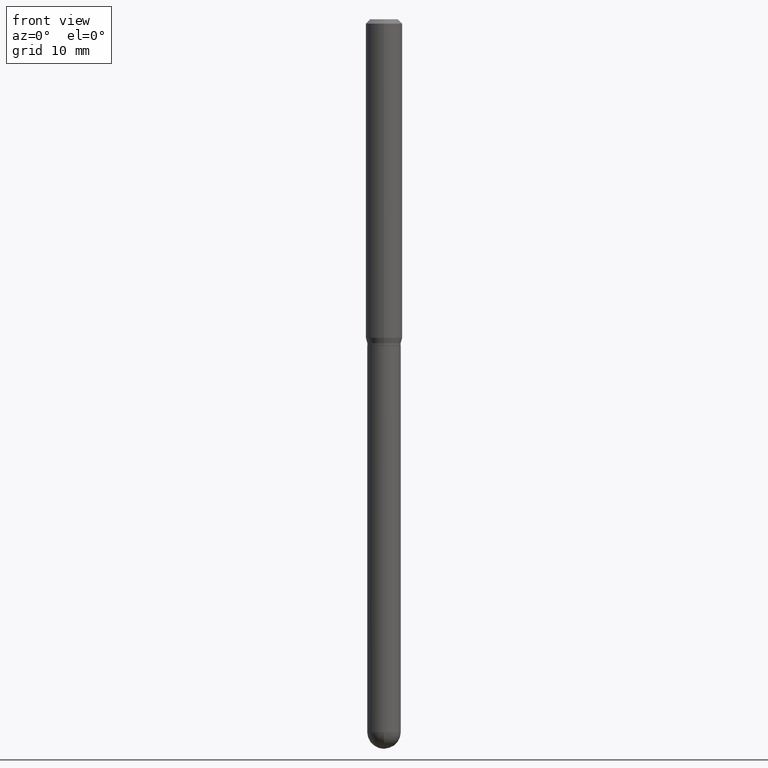
[diagram: clean part render]
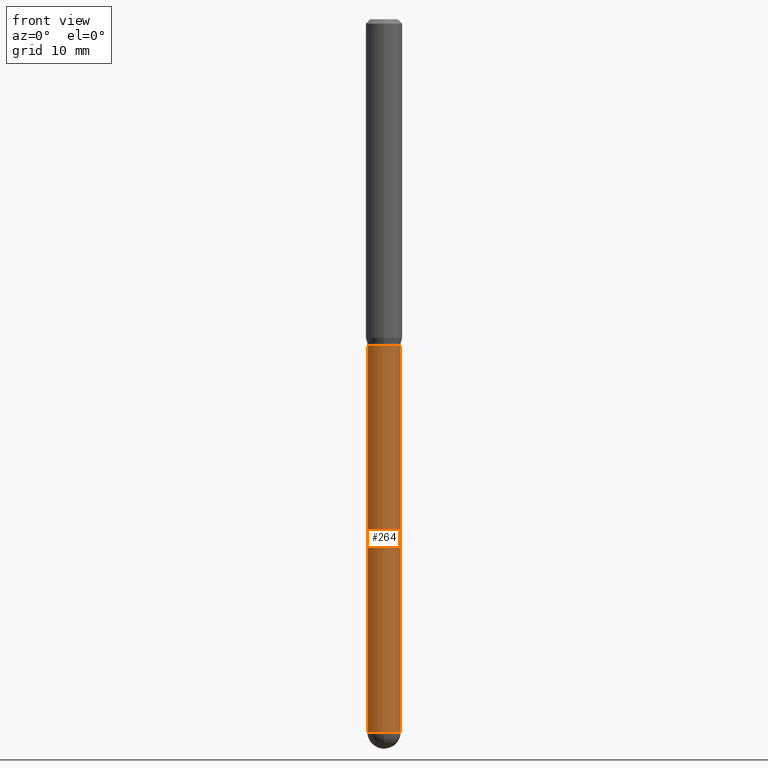
[diagram: same view with one face highlighted and labeled with its STEP entity id]
A machine part, front view. The second image highlights one B-rep face of the part: STEP entity #264.
In plain terms, the highlighted cylindrical surface (edge-blend (fillet) strip) has radius 1.4605 mm, axis along (-0, 0, 1).
Its self-contained STEP definition (entity closure, byte-faithful):
#20 = CARTESIAN_POINT ( 'NONE',  ( -0.05750000000000000250, -5.810639061752296196E-15, -1.120000000000000329 ) ) ;
#32 = DIRECTION ( 'NONE',  ( -2.445468806185136597E-29, 3.491481338843145583E-15, 1.000000000000000000 ) ) ;
#34 = EDGE_CURVE ( 'NONE', #333, #499, #417, .T. ) ;
#37 = DIRECTION ( 'NONE',  ( -2.445468806185136877E-29, 3.491481338843145188E-15, 1.000000000000000000 ) ) ;
#38 = CARTESIAN_POINT ( 'NONE',  ( 2.738925062927354020E-29, -3.910459099504324188E-15, -1.120000000000000329 ) ) ;
#42 = CARTESIAN_POINT ( 'NONE',  ( 0.05750000000000000250, -4.311979453471284209E-15, -1.120000000000000329 ) ) ;
#52 = ORIENTED_EDGE ( 'NONE', *, *, #34, .T. ) ;
#57 = ORIENTED_EDGE ( 'NONE', *, *, #395, .F. ) ;
#58 = ORIENTED_EDGE ( 'NONE', *, *, #88, .T. ) ;
#81 = AXIS2_PLACEMENT_3D ( 'NONE', #107, #282, #141 ) ;
#85 = VERTEX_POINT ( 'NONE', #20 ) ;
#88 = EDGE_CURVE ( 'NONE', #437, #252, #151, .T. ) ;
#107 = CARTESIAN_POINT ( 'NONE',  ( 5.973057559107196227E-29, -8.527943170124383355E-15, -2.442499999999999893 ) ) ;
#124 = DIRECTION ( 'NONE',  ( 1.000000000000000000, -6.982962677686265922E-15, 4.876176775795935232E-29 ) ) ;
#141 = DIRECTION ( 'NONE',  ( 1.000000000000000000, -6.982962677686273810E-15, 0.000000000000000000 ) ) ;
#149 = DIRECTION ( 'NONE',  ( -2.445468806185136877E-29, 3.491481338843145188E-15, 1.000000000000000000 ) ) ;
#151 = LINE ( 'NONE', #323, #194 ) ;
#158 = CIRCLE ( 'NONE', #164, 0.05750000000000000250 ) ;
#160 = CARTESIAN_POINT ( 'NONE',  ( 0.05750000000000000250, -6.620721488781313792E-15, -2.442499999999999893 ) ) ;
#161 = FACE_OUTER_BOUND ( 'NONE', #200, .T. ) ;
#164 = AXIS2_PLACEMENT_3D ( 'NONE', #424, #32, #268 ) ;
#187 = LINE ( 'NONE', #470, #443 ) ;
#190 = CARTESIAN_POINT ( 'NONE',  ( 0.000000000000000000, 0.000000000000000000, 0.000000000000000000 ) ) ;
#194 = VECTOR ( 'NONE', #149, 39.37007874015748143 ) ;
#196 = DIRECTION ( 'NONE',  ( -2.445468806185136597E-29, 3.491481338843145583E-15, 1.000000000000000000 ) ) ;
#200 = EDGE_LOOP ( 'NONE', ( #57, #52, #375, #58, #226 ) ) ;
#226 = ORIENTED_EDGE ( 'NONE', *, *, #303, .F. ) ;
#233 = CIRCLE ( 'NONE', #248, 0.05750000000000000250 ) ;
#248 = AXIS2_PLACEMENT_3D ( 'NONE', #38, #196, #350 ) ;
#252 = VERTEX_POINT ( 'NONE', #42 ) ;
#264 = ADVANCED_FACE ( 'NONE', ( #161 ), #428, .T. ) ;
#268 = DIRECTION ( 'NONE',  ( 1.000000000000000000, -6.982962677686273810E-15, 0.000000000000000000 ) ) ;
#282 = DIRECTION ( 'NONE',  ( -2.445468806185136597E-29, 3.491481338843145583E-15, 1.000000000000000000 ) ) ;
#303 = EDGE_CURVE ( 'NONE', #85, #252, #233, .T. ) ;
#320 = AXIS2_PLACEMENT_3D ( 'NONE', #190, #345, #124 ) ;
#323 = CARTESIAN_POINT ( 'NONE',  ( 0.05750000000000000250, -4.015203539669603161E-16, 2.803801646082662941E-30 ) ) ;
#333 = VERTEX_POINT ( 'NONE', #420 ) ;
#345 = DIRECTION ( 'NONE',  ( -2.445468806185136597E-29, 3.491481338843145583E-15, 1.000000000000000000 ) ) ;
#350 = DIRECTION ( 'NONE',  ( 1.000000000000000000, -6.982962677686265133E-15, 0.000000000000000000 ) ) ;
#375 = ORIENTED_EDGE ( 'NONE', *, *, #478, .T. ) ;
#386 = CARTESIAN_POINT ( 'NONE',  ( -4.085620730619980656E-16, -0.05750000000000857203, -2.442499999999999893 ) ) ;
#395 = EDGE_CURVE ( 'NONE', #333, #85, #187, .T. ) ;
#417 = CIRCLE ( 'NONE', #81, 0.05750000000000000250 ) ;
#420 = CARTESIAN_POINT ( 'NONE',  ( -0.05750000000000000250, -5.810639061752296196E-15, -2.442499999999999893 ) ) ;
#424 = CARTESIAN_POINT ( 'NONE',  ( 5.973057559107196227E-29, -8.527943170124383355E-15, -2.442499999999999893 ) ) ;
#428 = CYLINDRICAL_SURFACE ( 'NONE', #320, 0.05750000000000000250 ) ;
#437 = VERTEX_POINT ( 'NONE', #160 ) ;
#443 = VECTOR ( 'NONE', #37, 39.37007874015748143 ) ;
#470 = CARTESIAN_POINT ( 'NONE',  ( -0.05750000000000000250, 4.085620730620576246E-16, -2.828387676896570712E-30 ) ) ;
#478 = EDGE_CURVE ( 'NONE', #499, #437, #158, .T. ) ;
#499 = VERTEX_POINT ( 'NONE', #386 ) ;